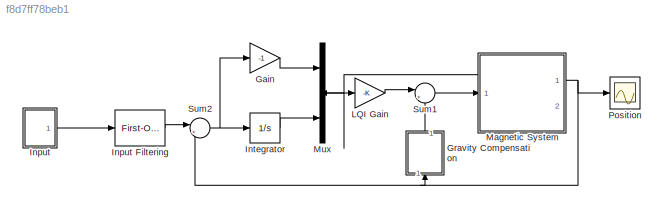
MODEL slx_f8d7ff78beb1
KIND model
CONFIG AbsTol = auto
CONFIG EnableMultiTasking = off
CONFIG FixedStep = auto
CONFIG MaxStep = auto
CONFIG MinStep = auto
CONFIG RelTol = 1e-3
CONFIG SampleTimeConstraint = Unconstrained
CONFIG SolverName = VariableStepAuto
CONFIG StartTime = 0.0
CONFIG StopTime = 5
BLOCK [Gain] Gain
  Gain = -1
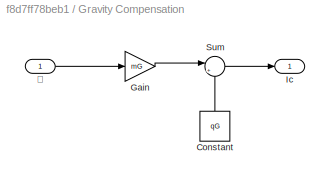
BLOCK [SubSystem] Gravity Compensation
  NameLocation = right
  Ports = [1, 1]
  RequestExecContextInheritance = off
BLOCK [Constant] Gravity Compensation/Constant
  NameLocation = right
  Value = qG
BLOCK [Gain] Gravity Compensation/Gain
  Gain = mG
BLOCK [Outport] Gravity Compensation/Ic
BLOCK [Sum] Gravity Compensation/Sum
  Inputs = |++
  Ports = [2, 1]
BLOCK [Inport] Gravity Compensation/𝛿
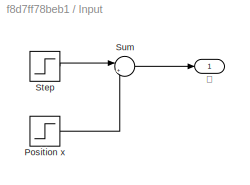
BLOCK [SubSystem] Input
  Ports = [0, 1]
  RequestExecContextInheritance = off
BLOCK [Reference] Input Filtering  REF=spsFirstOrderFilterLib/First-Order
Filter
  Ports = [1, 1]
  SourceBlock = spsFirstOrderFilterLib/First-Order\nFilter
  SourceProductBaseCode = PS
  SourceType = First-Order Filter
BLOCK [Step] Input/Position x
  After = deltaeq
  SampleTime = 0
BLOCK [Step] Input/Step
  After = start
  Before = d0
  SampleTime = 0
  Time = 0
BLOCK [Sum] Input/Sum
  Inputs = |+-
  Ports = [2, 1]
BLOCK [Outport] Input/𝛿
BLOCK [Integrator] Integrator
  Ports = [1, 1]
BLOCK [Gain] LQI Gain
  Gain = -K
  Multiplication = Matrix(K*u)
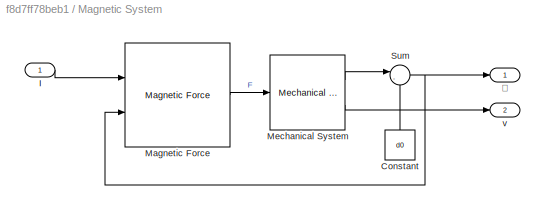
BLOCK [SubSystem] Magnetic System
  PortSchema = {"entries":[{"content":{"sides":[{"content":{"connectorIds":["In1"]},"type":"ConnectorPlacement.EquallySpacedRectSide","uuid":"11c028e3-2450-44cd-a965-7c94b7d6c677"},{"content":{"connectorIds":["Out1"],"side":"RIGHT"},"type":"ConnectorPlacement.EquallySpacedRectSide","uuid":"426461b2-46d8-43cd-b908-5fc589a9717c"},{"content":{"connectorIds":["Out2"],"side":"TOP"},"type":"ConnectorPlacement.EquallyS...<+246ch>
  Ports = [1, 2]
  RequestExecContextInheritance = off
BLOCK [Constant] Magnetic System/Constant
  NameLocation = right
  Value = d0
BLOCK [Inport] Magnetic System/I
BLOCK [Reference] Magnetic System/Magnetic Force  REF=MAGLEV_components/Magnetic Force
  Ports = [2, 1]
  SourceBlock = MAGLEV_components/Magnetic Force
  SourceType = Magnetic Force
BLOCK [Reference] Magnetic System/Mechanical System  REF=MAGLEV_components/Mechanical System
  Ports = [1, 2]
  SourceBlock = MAGLEV_components/Mechanical System
  SourceType = Mechanical System
BLOCK [Sum] Magnetic System/Sum
  Inputs = |-+
  Ports = [2, 1]
BLOCK [Outport] Magnetic System/v
  Port = 2
BLOCK [Outport] Magnetic System/𝛿
BLOCK [Mux] Mux
  DisplayOption = bar
  Inputs = 3
  Ports = [3, 1]
BLOCK [Scope] Position
  Floating = off
  NumInputPorts = 1
  Ports = [1]
  ScopeSpecificationString = Simulink.scopes.TimeScopeBlockCfg('CurrentConfiguration', extmgr.ConfigurationSet(extmgr.Configuration('Core','General UI',true),extmgr.Configuration('Core','Source UI',true),extmgr.Configuration('Sources','WiredSimulink',true,'DataLoggingVariableName','ScopeData1'),extmgr.Configuration('Visuals','Time Domain',true,'SerializedDisplays',{struct('MinYLimReal','5.36424','MaxYLimReal','14.95953','YLab...<+1404ch>
BLOCK [Sum] Sum1
  Inputs = |++
  Ports = [2, 1]
BLOCK [Sum] Sum2
  Inputs = |+-
  Ports = [2, 1]
LINE Gain:1 -> Mux:1
LINE Gravity Compensation/Constant:1 -> Gravity Compensation/Sum:2
LINE Gravity Compensation/Gain:1 -> Gravity Compensation/Sum:1
LINE Gravity Compensation/Sum:1 -> Gravity Compensation/Ic:1
LINE Gravity Compensation/𝛿:1 -> Gravity Compensation/Gain:1
LINE Gravity Compensation:1 -> Sum1:2
LINE Input Filtering:1 -> Sum2:1
LINE Input/Position x:1 -> Input/Sum:2
LINE Input/Step:1 -> Input/Sum:1
LINE Input/Sum:1 -> Input/𝛿:1
LINE Input:1 -> Input Filtering:1
LINE Integrator:1 -> Mux:3
LINE LQI Gain:1 -> Sum1:1
LINE Magnetic System/Constant:1 -> Magnetic System/Sum:2
LINE Magnetic System/I:1 -> Magnetic System/Magnetic Force:1
LINE Magnetic System/Magnetic Force:1 -> Magnetic System/Mechanical System:1
LINE Magnetic System/Mechanical System:1 -> Magnetic System/Sum:1
LINE Magnetic System/Mechanical System:2 -> Magnetic System/v:1
NET Magnetic System/Sum:1 -> Magnetic System/Magnetic Force:2, Magnetic System/𝛿:1
NET Magnetic System:1 -> Gravity Compensation:1, Position:1, Sum2:2
LINE Magnetic System:2 -> Mux:2
LINE Mux:1 -> LQI Gain:1
LINE Sum1:1 -> Magnetic System:1
NET Sum2:1 -> Gain:1, Integrator:1
note: NET lines group one-source signal fan-out (src -> all destinations, sorted); 1:1 wires keep LINE
